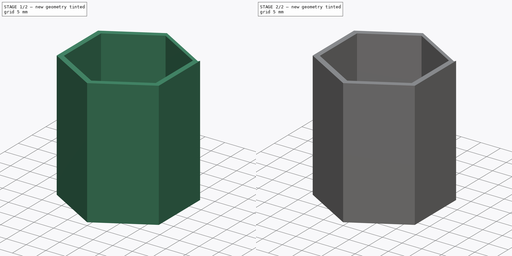
[diagram: build sequence overview — one tinted view per stage of 2, left to right]
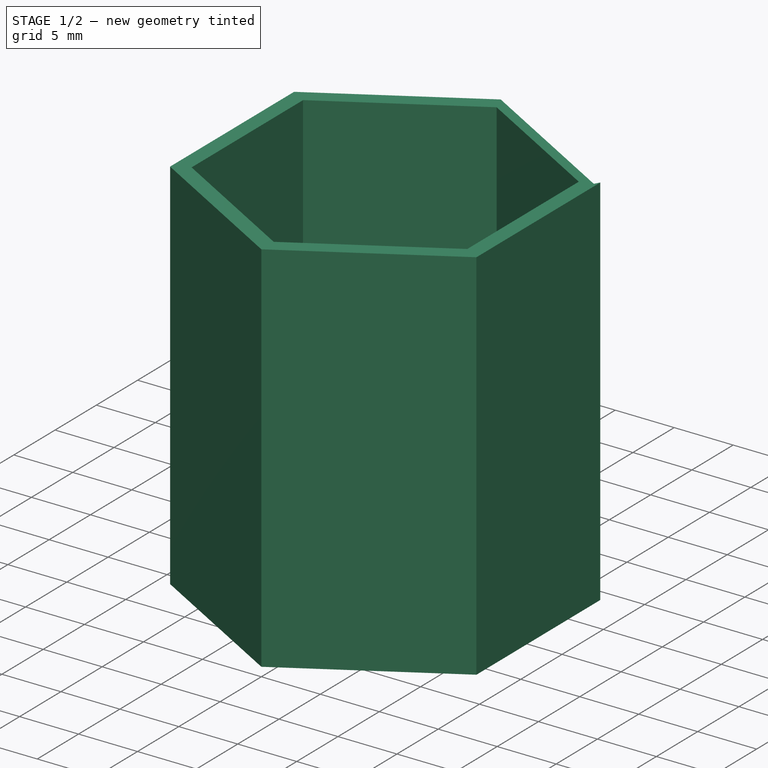
[diagram: stage 1 of 2 — iso view after this stage's code; geometry added in this stage tinted green]
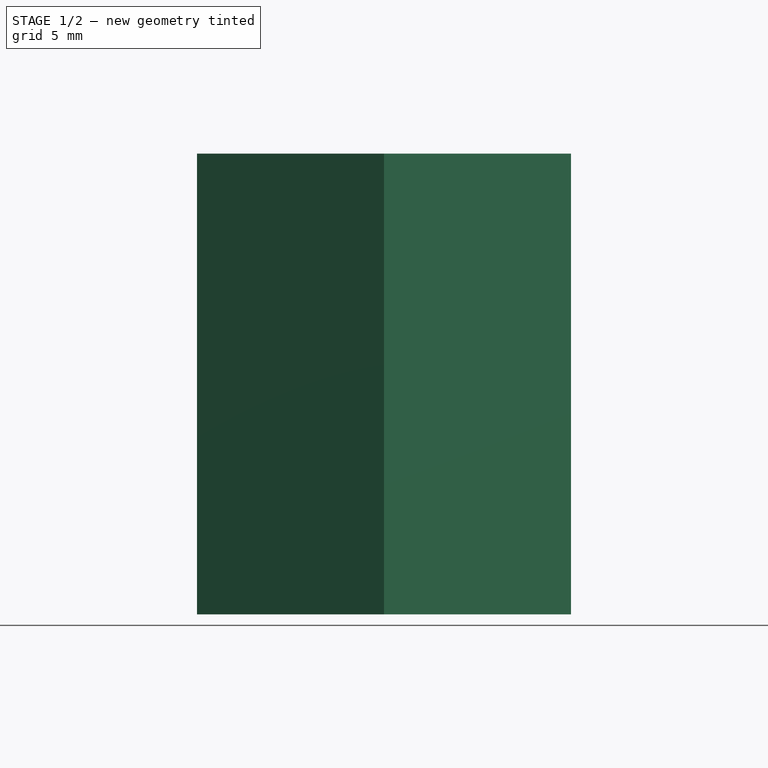
[diagram: stage 1 of 2 — front view after this stage's code; geometry added in this stage tinted green]
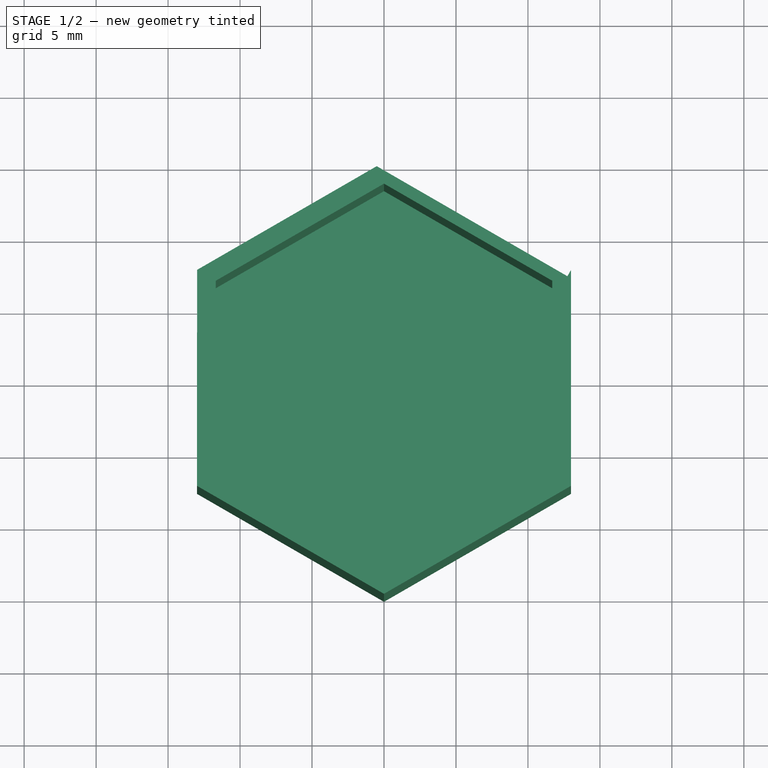
[diagram: stage 1 of 2 — top view after this stage's code; geometry added in this stage tinted green]
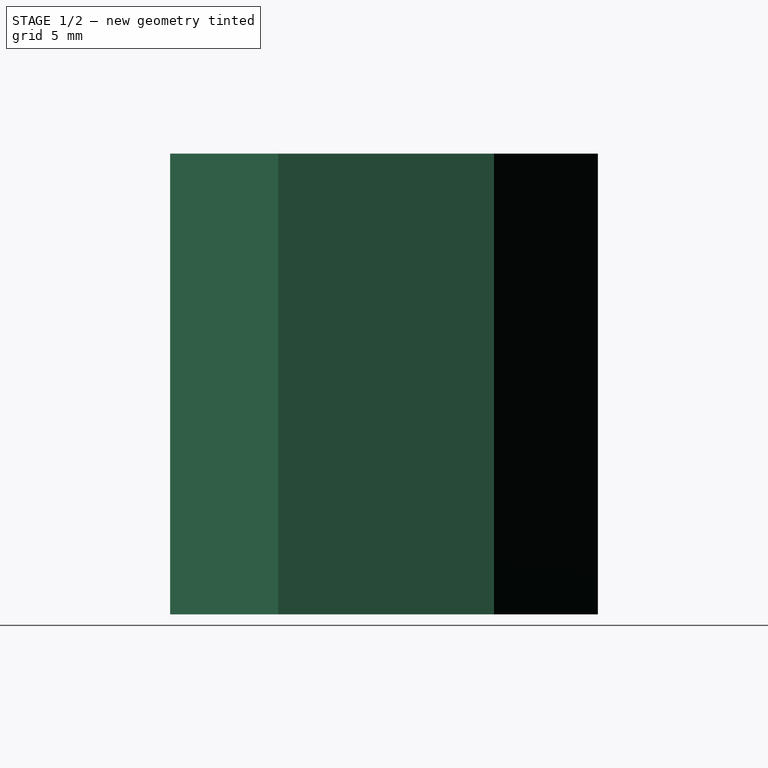
[diagram: stage 1 of 2 — right view after this stage's code; geometry added in this stage tinted green]
FCSTD DOCUMENT  (FreeCAD 0.21R33771 (Git))
Label: coupler
License: All rights reserved
LicenseURL: http://en.wikipedia.org/wiki/All_rights_reserved
objects: Sketcher::SketchObject×4, PartDesign::Pad×2, PartDesign::Pocket×2, PartDesign::Body×1
note: 13 computed .brp shape members not serialized (recipe doc carries the construction recipe); baked Part::Feature solids carry a one-line shape summary decoded from their .brp

FEATURE [Sketcher::SketchObject] Sketch
  FullyConstrained = false
  MapMode = 5
  Support = -> [XY_Plane]
  sketch-geometry (15):
    g0: LineSegment StartX=-0.50397 StartY=14.7134 StartZ=0 EndX=-12.9849 EndY=7.50882 EndZ=0
    g1: LineSegment StartX=-12.9849 StartY=7.50882 StartZ=0 EndX=-12.99 EndY=-7.5 EndZ=0
    g2: LineSegment StartX=-12.99 StartY=-7.5 StartZ=0 EndX=0 EndY=-14.9997 EndZ=0
    g3: LineSegment StartX=0 StartY=-14.9997 StartZ=0 EndX=12.99 EndY=-7.5 EndZ=0
    g4: LineSegment StartX=12.99 StartY=-7.5 StartZ=0 EndX=12.99 EndY=7.5 EndZ=0
    g5: Circle CenterX=0 CenterY=0 CenterZ=0 NormalX=0 NormalY=0 NormalZ=1 AngleXU=0 Radius=14.9997
    g6: LineSegment StartX=-0.50397 StartY=14.7134 StartZ=0 EndX=12.74 EndY=7.06699 EndZ=0
    g7: LineSegment StartX=12.74 StartY=7.06699 StartZ=0 EndX=12.99 EndY=7.5 EndZ=0
    g8: LineSegment StartX=0 StartY=13.4997 StartZ=0 EndX=-11.6911 EndY=6.74983 EndZ=0
    g9: LineSegment StartX=-11.6911 StartY=6.74983 StartZ=0 EndX=-11.6911 EndY=-6.74983 EndZ=0
    g10: LineSegment StartX=-11.6911 StartY=-6.74983 StartZ=0 EndX=0 EndY=-13.4997 EndZ=0
    g11: LineSegment StartX=-7e-16 StartY=-13.4997 StartZ=0 EndX=11.6911 EndY=-6.74983 EndZ=0
    g12: LineSegment StartX=11.6911 StartY=-6.74983 StartZ=0 EndX=11.6911 EndY=6.74983 EndZ=0
    g13: LineSegment StartX=11.6911 StartY=6.74983 StartZ=0 EndX=0 EndY=13.4997 EndZ=0
    g14: Circle CenterX=0 CenterY=0 CenterZ=0 NormalX=0 NormalY=0 NormalZ=1 AngleXU=0 Radius=13.4997
  constraints (33):
    c: Coincident(g0,g1)
    c: Coincident(g1,g2)
    c: Coincident(g2,g3)
    c: Coincident(g3,g4)
    c: PointOnObject(g0,g5)
    c: PointOnObject(g1,g5)
    c: PointOnObject(g2,g5)
    c: PointOnObject(g3,g5)
    c: PointOnObject(g4,g5)
    c: Coincident(g5,g-1)
    c: Coincident(g6,g7)
    c: Coincident(g7,g4)
    c: Vertical(g4)
    c: Angle(g7,g4) = 0.523599
    c: Distance(g7) = 0.5
    c: Angle(g7,g6) = 1.5708
    c: Coincident(g0,g6)
    c: Coincident(g8,g9)
    c: Coincident(g9,g10)
    c: Coincident(g10,g11)
    c: Coincident(g11,g12)
    c: Coincident(g12,g13)
    c: Coincident(g13,g8)
    c: Equal(g8, g9-g13) x5
    c: PointOnObject(g8,g14)
    c: PointOnObject(g9,g14)
    c: PointOnObject(g10,g14)
    c: PointOnObject(g11,g14)
    c: PointOnObject(g12,g14)
    c: PointOnObject(g13,g14)
    c: Coincident(g14,g5)
    c: PointOnObject(g13,g-2)
    c: DistanceY(g2,g10) = 1.5
FEATURE [PartDesign::Pad] Pad
  Direction = (0,0,1)
  Length = 30
  Length2 = 10
  Profile = -> Sketch
  ReferenceAxis = -> Sketch [N_Axis]
  Type = 0
FEATURE [Sketcher::SketchObject] Sketch001
  ExternalGeometry = -> [Sketch]
  FullyConstrained = true
  MapMode = 5
  Placement = pos=(0,0,0) rot=(1,0,0;3.14159rad)
  Support = -> [Pad]
  sketch-geometry (7):
    g0: LineSegment StartX=0 StartY=14.9997 StartZ=0 EndX=12.99 EndY=7.5 EndZ=0
    g1: LineSegment StartX=12.99 StartY=7.5 StartZ=0 EndX=12.99 EndY=-7.5 EndZ=0
    g2: LineSegment StartX=12.99 StartY=-7.5 StartZ=0 EndX=12.74 EndY=-7.06699 EndZ=0
    g3: LineSegment StartX=12.74 StartY=-7.06699 StartZ=0 EndX=-0.50397 EndY=-14.7134 EndZ=0
    g4: LineSegment StartX=-0.50397 StartY=-14.7134 StartZ=0 EndX=-12.9849 EndY=-7.50882 EndZ=0
    g5: LineSegment StartX=-12.9849 StartY=-7.50882 StartZ=0 EndX=-12.99 EndY=7.5 EndZ=0
    g6: LineSegment StartX=-12.99 StartY=7.5 StartZ=0 EndX=0 EndY=14.9997 EndZ=0
  constraints (14):
    c: Coincident(g-8,g0)
    c: Coincident(g0,g-4)
    c: Coincident(g0,g1)
    c: Coincident(g1,g-4)
    c: Coincident(g1,g2)
    c: Coincident(g2,g-5)
    c: Coincident(g2,g3)
    c: Coincident(g3,g-6)
    c: Coincident(g3,g4)
    c: Coincident(g4,g-7)
    c: Coincident(g4,g5)
    c: Coincident(g5,g-8)
    c: Coincident(g5,g6)
    c: Coincident(g6,g0)
FEATURE [PartDesign::Pad] Pad001
  BaseFeature = -> Pad
  Direction = (0,0,-1)
  Length = 2
  Length2 = 10
  Profile = -> Sketch001
  ReferenceAxis = -> Sketch001 [N_Axis]
  Type = 0
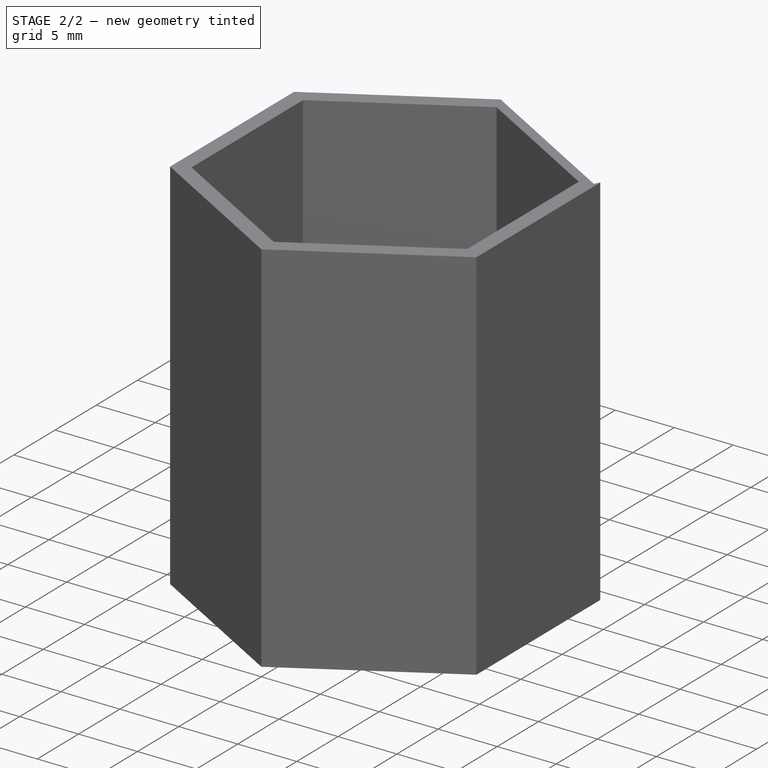
[diagram: stage 2 of 2 — iso view after this stage's code; geometry added in this stage tinted green]
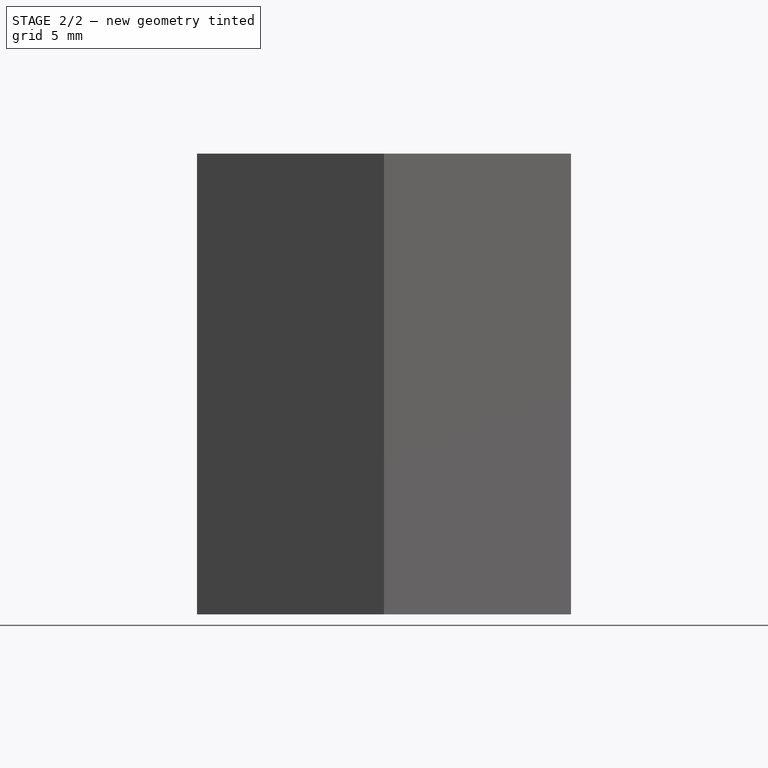
[diagram: stage 2 of 2 — front view after this stage's code; geometry added in this stage tinted green]
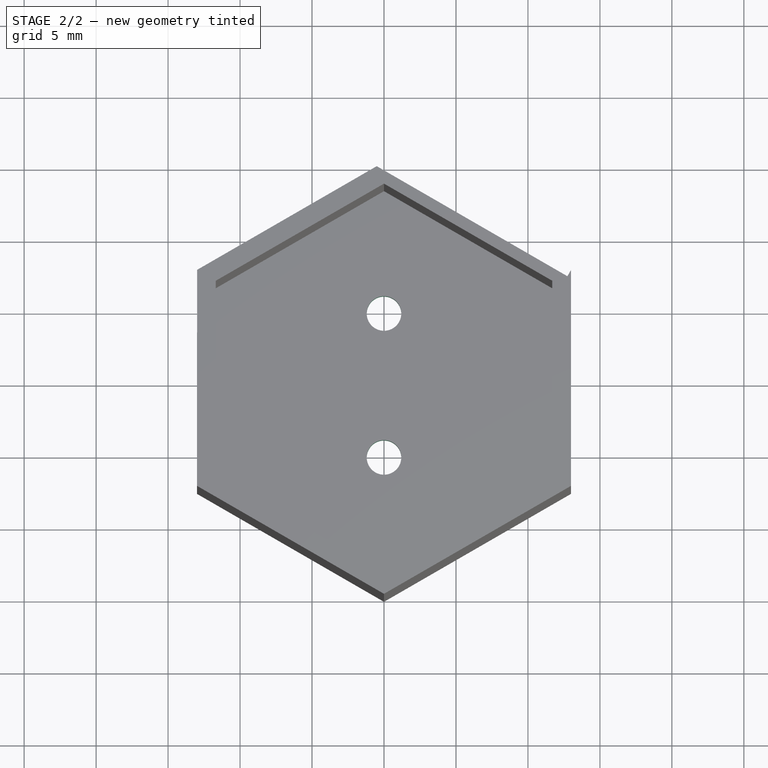
[diagram: stage 2 of 2 — top view after this stage's code; geometry added in this stage tinted green]
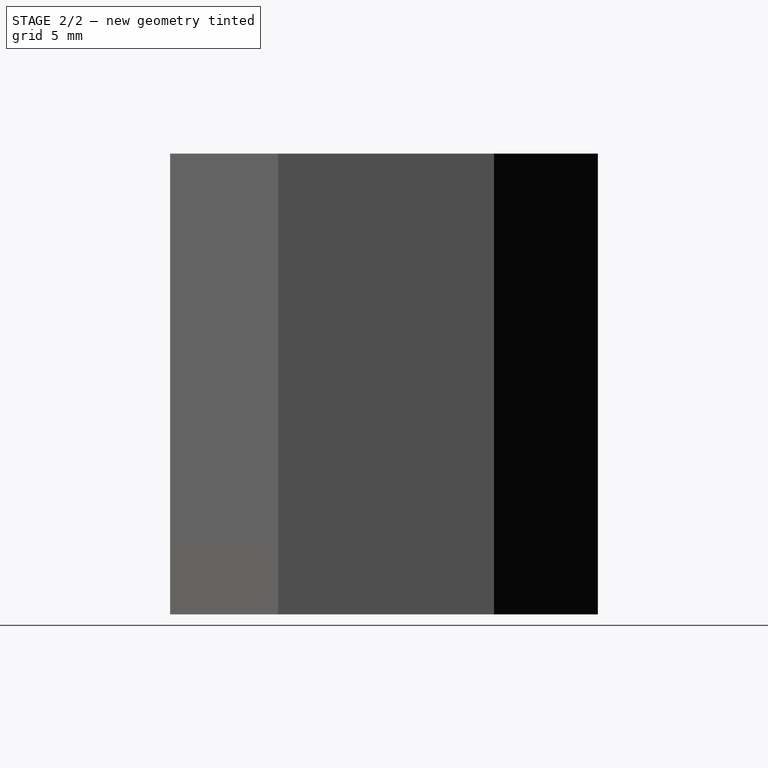
[diagram: stage 2 of 2 — right view after this stage's code; geometry added in this stage tinted green]
FEATURE [Sketcher::SketchObject] Sketch002
  FullyConstrained = false
  MapMode = 5
  Placement = pos=(0,0,-2) rot=(1,0,0;3.14159rad)
  Support = -> [Pad001]
  sketch-geometry (1):
    g0: Circle CenterX=5.57245 CenterY=-8.92072 CenterZ=0 NormalX=0 NormalY=0 NormalZ=1 AngleXU=0 Radius=0.739951
FEATURE [PartDesign::Pocket] Pocket
  BaseFeature = -> Pad001
  Direction = (0,0,1)
  Length = 1
  Length2 = 5
  Profile = -> Sketch002
  ReferenceAxis = -> Sketch002 [N_Axis]
  Type = 0
FEATURE [Sketcher::SketchObject] Sketch003
  FullyConstrained = true
  MapMode = 5
  Placement = pos=(0,0,-2) rot=(1,0,0;3.14159rad)
  Support = -> [Pocket]
  sketch-geometry (2):
    g0: Circle CenterX=0 CenterY=5 CenterZ=0 NormalX=0 NormalY=0 NormalZ=1 AngleXU=0 Radius=1.2
    g1: Circle CenterX=0 CenterY=-5 CenterZ=0 NormalX=0 NormalY=0 NormalZ=1 AngleXU=0 Radius=1.2
  constraints (6):
    c: PointOnObject(g0,g-2)
    c: PointOnObject(g1,g-2)
    c: Radius(g0) = 1.2
    c: Radius(g1) = 1.2
    c: DistanceY(g1,g-1) = 5
    c: DistanceY(g-1,g0) = 5
FEATURE [PartDesign::Pocket] Pocket001
  BaseFeature = -> Pocket
  Direction = (0,0,1)
  Length = 5
  Length2 = 5
  Profile = -> Sketch003
  ReferenceAxis = -> Sketch003 [N_Axis]
  Type = 0
FEATURE [PartDesign::Body] Body
  Group = -> [Sketch,Pad,Sketch001,Pad001,Sketch002,Pocket,Sketch003,Pocket001]
  Origin = -> Origin
  Tip = -> Pocket001
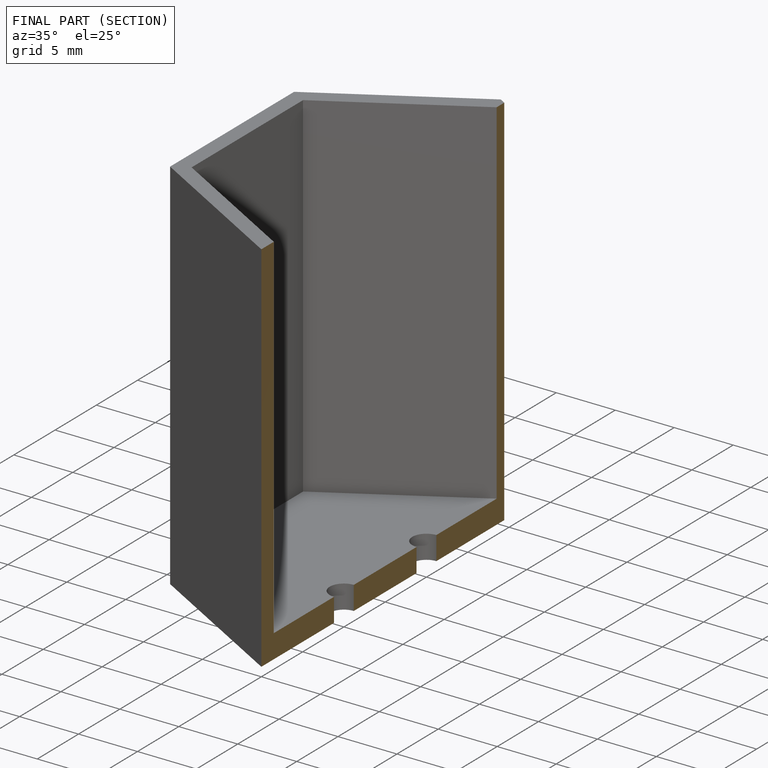
[diagram: finished part — half-section view (interior)]
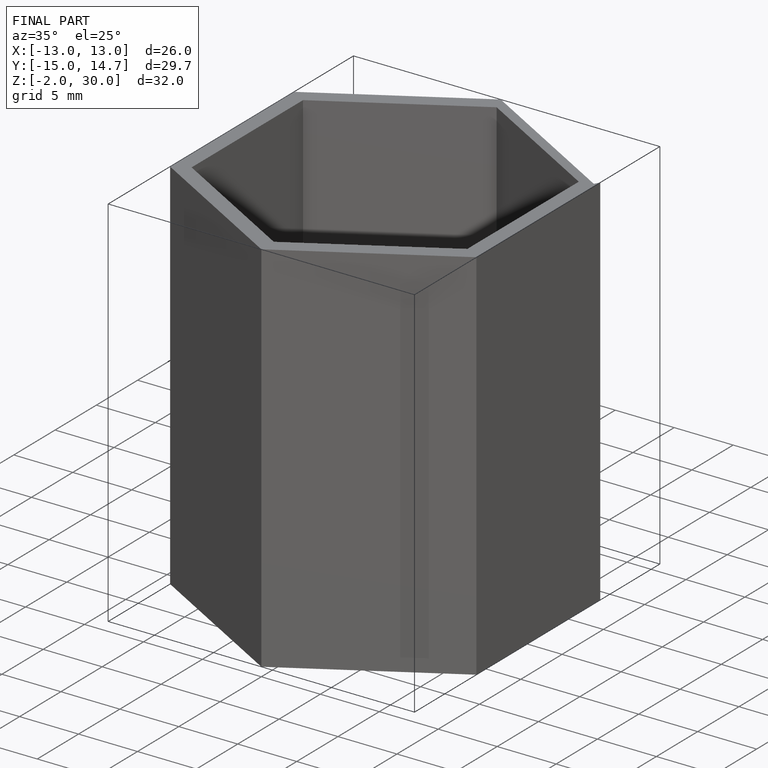
[diagram: finished part — iso view with bounding-box wireframe]
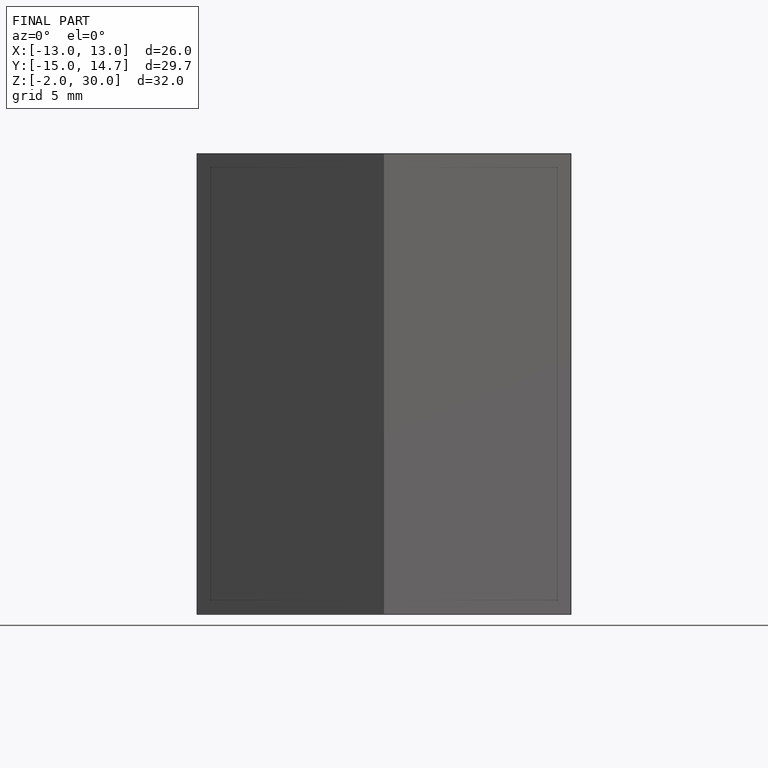
[diagram: finished part — front view with bounding-box wireframe]
